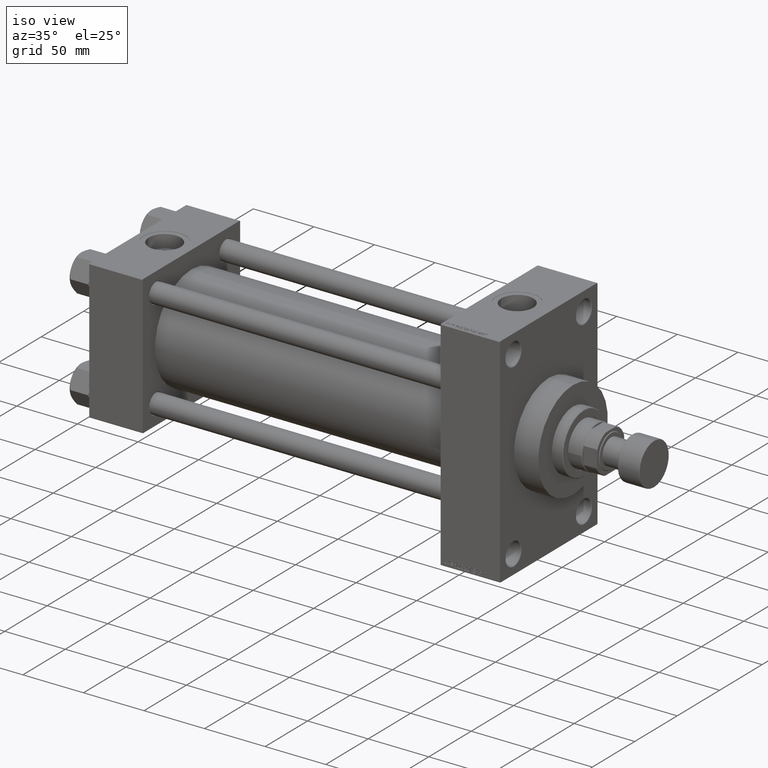
[diagram: clean part render]
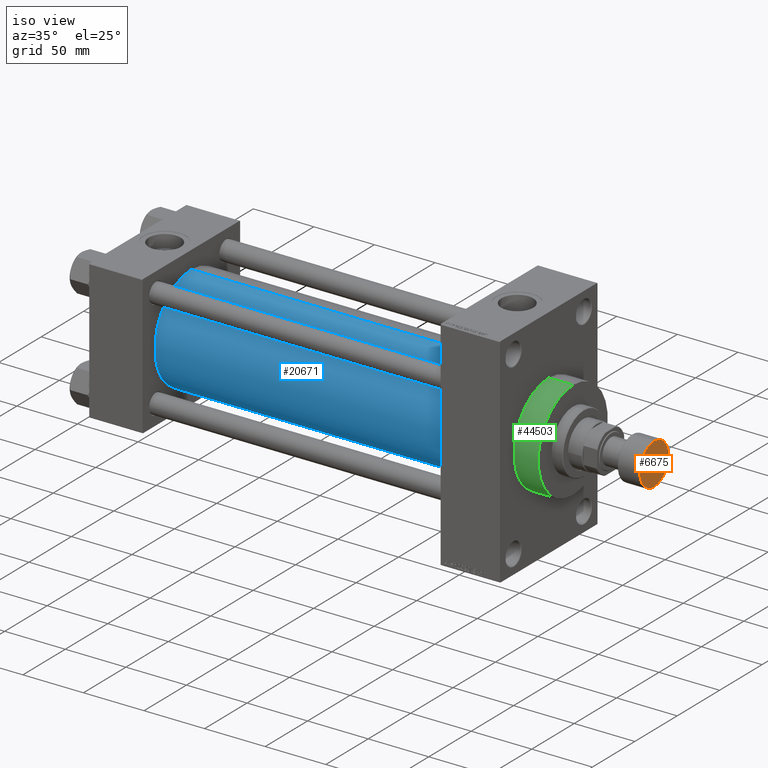
[diagram: same view with three faces highlighted in distinct colors, each labeled with its STEP entity id]
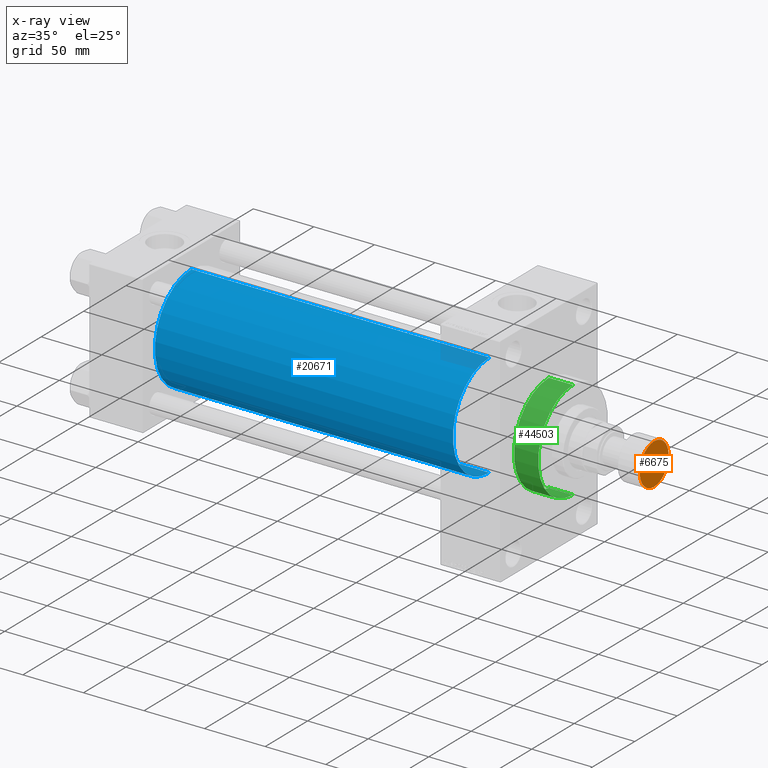
[diagram: x-ray of the same camera — body ghosted, the three highlighted faces saturated]
A machine part, iso view with three faces highlighted in distinct colors.
The next image is the same camera in x-ray (body ghosted, the three faces saturated) — at least one of them is partly hidden behind the body in this view.
Their STEP definitions:

[orange] entity #6675 — the highlighted planar face has unit normal (1, 0, 0).
#462 = PLANE ( 'NONE',  #32569 ) ;
#5406 = VERTEX_POINT ( 'NONE', #29010 ) ;
#6675 = ADVANCED_FACE ( 'NONE', ( #33791 ), #462, .T. ) ;
#12817 = EDGE_LOOP ( 'NONE', ( #40424, #15318 ) ) ;
#13301 = DIRECTION ( 'NONE',  ( 1.000000000000000000, 0.000000000000000000, -0.000000000000000000 ) ) ;
#15286 = CARTESIAN_POINT ( 'NONE',  ( 0.000000000000000000, 0.000000000000000000, 0.000000000000000000 ) ) ;
#15318 = ORIENTED_EDGE ( 'NONE', *, *, #36142, .T. ) ;
#16534 = CARTESIAN_POINT ( 'NONE',  ( 0.000000000000000000, 0.000000000000000000, 0.000000000000000000 ) ) ;
#18005 = EDGE_CURVE ( 'NONE', #5406, #39907, #31318, .T. ) ;
#18082 = DIRECTION ( 'NONE',  ( 1.000000000000000000, 0.000000000000000000, 0.000000000000000000 ) ) ;
#28464 = AXIS2_PLACEMENT_3D ( 'NONE', #44124, #39757, #18082 ) ;
#29010 = CARTESIAN_POINT ( 'NONE',  ( 17.00000000000000355, 0.000000000000000000, 0.000000000000000000 ) ) ;
#31318 = CIRCLE ( 'NONE', #38434, 17.00000000000000355 ) ;
#31377 = DIRECTION ( 'NONE',  ( 1.000000000000000000, 0.000000000000000000, 0.000000000000000000 ) ) ;
#32569 = AXIS2_PLACEMENT_3D ( 'NONE', #15286, #44996, #13301 ) ;
#33791 = FACE_OUTER_BOUND ( 'NONE', #12817, .T. ) ;
#36142 = EDGE_CURVE ( 'NONE', #39907, #5406, #37009, .T. ) ;
#37009 = CIRCLE ( 'NONE', #28464, 17.00000000000000355 ) ;
#38434 = AXIS2_PLACEMENT_3D ( 'NONE', #16534, #42590, #31377 ) ;
#39757 = DIRECTION ( 'NONE',  ( 0.000000000000000000, 0.000000000000000000, 1.000000000000000000 ) ) ;
#39907 = VERTEX_POINT ( 'NONE', #47112 ) ;
#40424 = ORIENTED_EDGE ( 'NONE', *, *, #18005, .T. ) ;
#42590 = DIRECTION ( 'NONE',  ( 0.000000000000000000, 0.000000000000000000, 1.000000000000000000 ) ) ;
#44124 = CARTESIAN_POINT ( 'NONE',  ( 0.000000000000000000, 0.000000000000000000, 0.000000000000000000 ) ) ;
#44996 = DIRECTION ( 'NONE',  ( 0.000000000000000000, 0.000000000000000000, 1.000000000000000000 ) ) ;
#47112 = CARTESIAN_POINT ( 'NONE',  ( -17.00000000000000355, 2.112515728529184856E-15, 0.000000000000000000 ) ) ;

[blue] entity #20671 — the highlighted cylindrical surface (partial cylindrical patch) has radius 43 mm, axis along (-1, -0, -0).
#261 = CARTESIAN_POINT ( 'NONE',  ( 290.0000000000000000, 2.663896022368408223E-15, -43.00000000000000000 ) ) ;
#974 = DIRECTION ( 'NONE',  ( -1.000000000000000000, -0.000000000000000000, -0.000000000000000000 ) ) ;
#8266 = LINE ( 'NONE', #261, #31586 ) ;
#11061 = DIRECTION ( 'NONE',  ( 1.000000000000000000, 0.000000000000000000, 0.000000000000000000 ) ) ;
#13814 = EDGE_CURVE ( 'NONE', #24975, #45133, #28959, .T. ) ;
#16088 = VECTOR ( 'NONE', #40851, 1000.000000000000000 ) ;
#17661 = CARTESIAN_POINT ( 'NONE',  ( 43.99999999999998579, 2.663896022368408223E-15, -43.00000000000000000 ) ) ;
#18351 = FACE_OUTER_BOUND ( 'NONE', #18571, .T. ) ;
#18571 = EDGE_LOOP ( 'NONE', ( #40303, #24756, #39296, #37331 ) ) ;
#18597 = DIRECTION ( 'NONE',  ( -1.000000000000000000, -0.000000000000000000, -0.000000000000000000 ) ) ;
#19024 = CARTESIAN_POINT ( 'NONE',  ( 290.0000000000000000, 2.663896022368408223E-15, -43.00000000000000000 ) ) ;
#19191 = AXIS2_PLACEMENT_3D ( 'NONE', #39014, #21450, #36294 ) ;
#20501 = AXIS2_PLACEMENT_3D ( 'NONE', #32942, #18597, #21755 ) ;
#20671 = ADVANCED_FACE ( 'NONE', ( #18351 ), #25171, .T. ) ;
#20678 = CARTESIAN_POINT ( 'NONE',  ( 43.99999999999998579, -2.602085213965210642E-15, 43.00000000000000000 ) ) ;
#21450 = DIRECTION ( 'NONE',  ( 1.000000000000000000, -0.000000000000000000, 0.000000000000000000 ) ) ;
#21755 = DIRECTION ( 'NONE',  ( 0.000000000000000000, 0.000000000000000000, 1.000000000000000000 ) ) ;
#24756 = ORIENTED_EDGE ( 'NONE', *, *, #13814, .F. ) ;
#24975 = VERTEX_POINT ( 'NONE', #34891 ) ;
#25171 = CYLINDRICAL_SURFACE ( 'NONE', #20501, 43.00000000000000000 ) ;
#28959 = CIRCLE ( 'NONE', #37520, 43.00000000000000000 ) ;
#31364 = EDGE_CURVE ( 'NONE', #24975, #47966, #44254, .T. ) ;
#31586 = VECTOR ( 'NONE', #974, 1000.000000000000000 ) ;
#32942 = CARTESIAN_POINT ( 'NONE',  ( 290.0000000000000000, -2.602085213965210642E-15, 0.000000000000000000 ) ) ;
#34891 = CARTESIAN_POINT ( 'NONE',  ( 290.0000000000000000, -2.602085213965210642E-15, 43.00000000000000000 ) ) ;
#36294 = DIRECTION ( 'NONE',  ( 0.000000000000000000, 0.000000000000000000, 1.000000000000000000 ) ) ;
#36534 = EDGE_CURVE ( 'NONE', #45133, #37017, #8266, .T. ) ;
#37017 = VERTEX_POINT ( 'NONE', #17661 ) ;
#37331 = ORIENTED_EDGE ( 'NONE', *, *, #37367, .T. ) ;
#37367 = EDGE_CURVE ( 'NONE', #47966, #37017, #40166, .T. ) ;
#37520 = AXIS2_PLACEMENT_3D ( 'NONE', #48088, #11061, #44667 ) ;
#39014 = CARTESIAN_POINT ( 'NONE',  ( 43.99999999999998579, -2.602085213965210642E-15, 0.000000000000000000 ) ) ;
#39296 = ORIENTED_EDGE ( 'NONE', *, *, #31364, .T. ) ;
#40166 = CIRCLE ( 'NONE', #19191, 43.00000000000000000 ) ;
#40303 = ORIENTED_EDGE ( 'NONE', *, *, #36534, .F. ) ;
#40851 = DIRECTION ( 'NONE',  ( -1.000000000000000000, -0.000000000000000000, -0.000000000000000000 ) ) ;
#44254 = LINE ( 'NONE', #44737, #16088 ) ;
#44667 = DIRECTION ( 'NONE',  ( 0.000000000000000000, 0.000000000000000000, -1.000000000000000000 ) ) ;
#44737 = CARTESIAN_POINT ( 'NONE',  ( 290.0000000000000000, -2.602085213965210642E-15, 43.00000000000000000 ) ) ;
#45133 = VERTEX_POINT ( 'NONE', #19024 ) ;
#47966 = VERTEX_POINT ( 'NONE', #20678 ) ;
#48088 = CARTESIAN_POINT ( 'NONE',  ( 290.0000000000000000, -2.602085213965210642E-15, 0.000000000000000000 ) ) ;

[green] entity #44503 — the highlighted cylindrical surface (partial cylindrical patch) has radius 41 mm, axis along (-1, -0, -0).
#17 = ORIENTED_EDGE ( 'NONE', *, *, #17421, .T. ) ;
#1077 = VECTOR ( 'NONE', #19892, 1000.000000000000000 ) ;
#1478 = CARTESIAN_POINT ( 'NONE',  ( 338.9999999999999432, 5.021051876504148963E-15, -41.00000000000000000 ) ) ;
#3608 = AXIS2_PLACEMENT_3D ( 'NONE', #18694, #19167, #18929 ) ;
#5455 = EDGE_CURVE ( 'NONE', #47405, #46561, #32921, .T. ) ;
#6821 = DIRECTION ( 'NONE',  ( -1.000000000000000000, -0.000000000000000000, -0.000000000000000000 ) ) ;
#8199 = LINE ( 'NONE', #12080, #1077 ) ;
#9191 = VECTOR ( 'NONE', #6821, 1000.000000000000000 ) ;
#11781 = ORIENTED_EDGE ( 'NONE', *, *, #5455, .F. ) ;
#12080 = CARTESIAN_POINT ( 'NONE',  ( 359.0000000000000000, 0.000000000000000000, 41.00000000000000000 ) ) ;
#12282 = AXIS2_PLACEMENT_3D ( 'NONE', #41584, #44997, #29422 ) ;
#15443 = VERTEX_POINT ( 'NONE', #40796 ) ;
#15820 = AXIS2_PLACEMENT_3D ( 'NONE', #29976, #44828, #17818 ) ;
#17421 = EDGE_CURVE ( 'NONE', #47405, #15443, #8199, .T. ) ;
#17818 = DIRECTION ( 'NONE',  ( 0.000000000000000000, 0.000000000000000000, -1.000000000000000000 ) ) ;
#18694 = CARTESIAN_POINT ( 'NONE',  ( 338.9999999999999432, 0.000000000000000000, 0.000000000000000000 ) ) ;
#18929 = DIRECTION ( 'NONE',  ( 0.000000000000000000, 0.000000000000000000, -1.000000000000000000 ) ) ;
#19167 = DIRECTION ( 'NONE',  ( 1.000000000000000000, 0.000000000000000000, 0.000000000000000000 ) ) ;
#19892 = DIRECTION ( 'NONE',  ( -1.000000000000000000, -0.000000000000000000, -0.000000000000000000 ) ) ;
#20904 = ORIENTED_EDGE ( 'NONE', *, *, #35985, .T. ) ;
#25335 = LINE ( 'NONE', #40182, #9191 ) ;
#28175 = ORIENTED_EDGE ( 'NONE', *, *, #30818, .F. ) ;
#29147 = CARTESIAN_POINT ( 'NONE',  ( 359.0000000000000000, 0.000000000000000000, 41.00000000000000000 ) ) ;
#29422 = DIRECTION ( 'NONE',  ( 0.000000000000000000, 0.000000000000000000, 1.000000000000000000 ) ) ;
#29976 = CARTESIAN_POINT ( 'NONE',  ( 359.0000000000000000, 0.000000000000000000, 0.000000000000000000 ) ) ;
#30117 = EDGE_LOOP ( 'NONE', ( #28175, #11781, #17, #20904 ) ) ;
#30147 = FACE_OUTER_BOUND ( 'NONE', #30117, .T. ) ;
#30818 = EDGE_CURVE ( 'NONE', #46561, #37416, #25335, .T. ) ;
#32921 = CIRCLE ( 'NONE', #15820, 41.00000000000000000 ) ;
#33462 = CARTESIAN_POINT ( 'NONE',  ( 359.0000000000000000, 5.021051876504148963E-15, -41.00000000000000000 ) ) ;
#35985 = EDGE_CURVE ( 'NONE', #15443, #37416, #40125, .T. ) ;
#37218 = CYLINDRICAL_SURFACE ( 'NONE', #12282, 41.00000000000000000 ) ;
#37416 = VERTEX_POINT ( 'NONE', #1478 ) ;
#40125 = CIRCLE ( 'NONE', #3608, 41.00000000000000000 ) ;
#40182 = CARTESIAN_POINT ( 'NONE',  ( 359.0000000000000000, 5.021051876504148963E-15, -41.00000000000000000 ) ) ;
#40796 = CARTESIAN_POINT ( 'NONE',  ( 338.9999999999999432, 0.000000000000000000, 41.00000000000000000 ) ) ;
#41584 = CARTESIAN_POINT ( 'NONE',  ( 359.0000000000000000, 0.000000000000000000, 0.000000000000000000 ) ) ;
#44503 = ADVANCED_FACE ( 'NONE', ( #30147 ), #37218, .T. ) ;
#44828 = DIRECTION ( 'NONE',  ( 1.000000000000000000, 0.000000000000000000, 0.000000000000000000 ) ) ;
#44997 = DIRECTION ( 'NONE',  ( -1.000000000000000000, -0.000000000000000000, -0.000000000000000000 ) ) ;
#46561 = VERTEX_POINT ( 'NONE', #33462 ) ;
#47405 = VERTEX_POINT ( 'NONE', #29147 ) ;